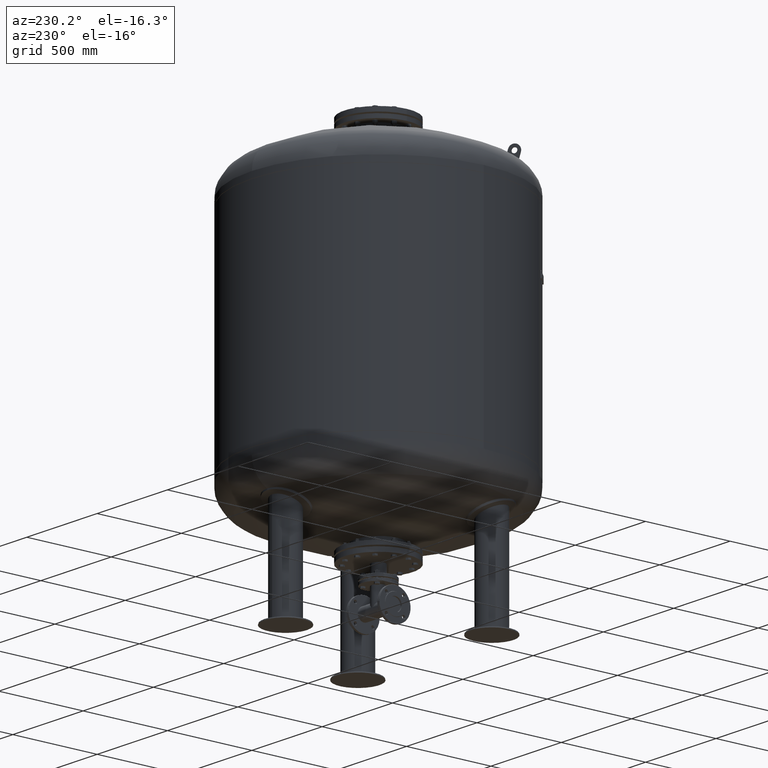
[diagram: clean part render]
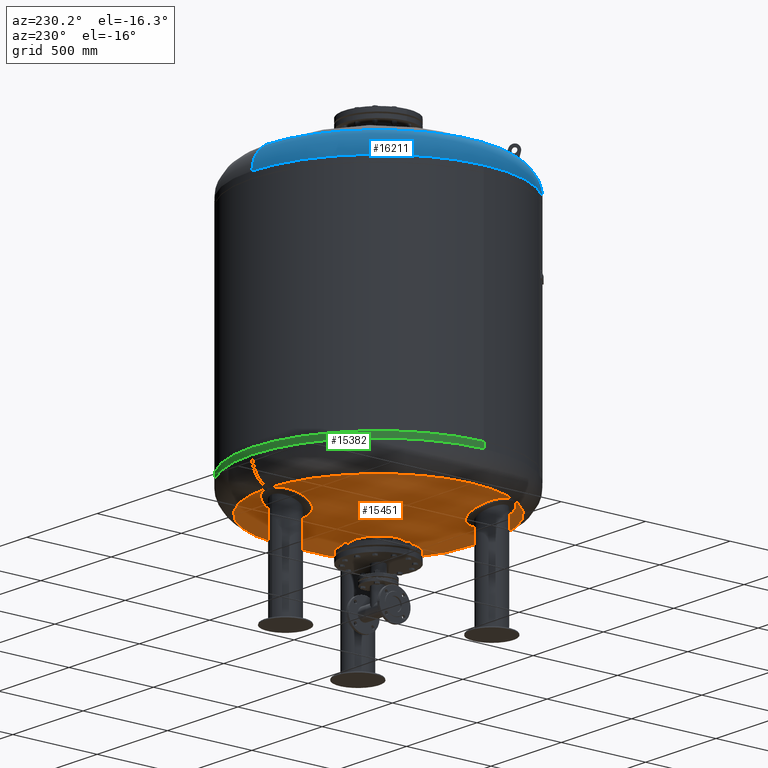
[diagram: same view with three faces highlighted in distinct colors, each labeled with its STEP entity id]
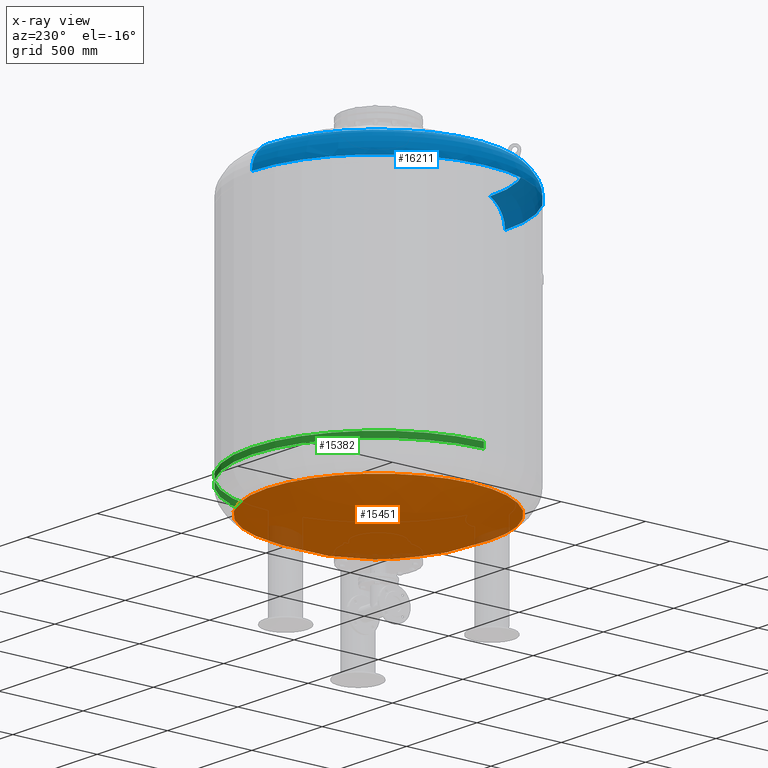
[diagram: x-ray of the same camera — body ghosted, the three highlighted faces saturated]
A machine part, auxiliary view with three faces highlighted in distinct colors.
The next image is the same camera in x-ray (body ghosted, the three faces saturated) — at least one of them is partly hidden behind the body in this view.
Their STEP definitions:

[orange] entity #15451 — the highlighted spherical surface has radius 1509 mm.
#15390=CARTESIAN_POINT('',(-4.647817E-014,-660.606666666666800,642.283437133770350));
#15391=VERTEX_POINT('',#15390);
#15407=CARTESIAN_POINT('',(-1.273765E-013,660.606666666666800,642.283437133770800));
#15408=VERTEX_POINT('',#15407);
#15416=CARTESIAN_POINT('',(-660.606666666666800,-2.797401E-014,642.283437133770460));
#15417=VERTEX_POINT('',#15416);
#15418=CARTESIAN_POINT('',(-2.617994E-014,-2.797401E-014,642.283437133770580));
#15419=DIRECTION('',(0.0,0.0,1.0));
#15420=DIRECTION('',(-1.0,0.0,0.0));
#15421=AXIS2_PLACEMENT_3D('',#15418,#15419,#15420);
#15422=CIRCLE('',#15421,660.606666666666800);
#15423=EDGE_CURVE('',#15408,#15417,#15422,.T.);
#15425=CARTESIAN_POINT('',(-2.617994E-014,-2.797401E-014,642.283437133770580));
#15426=DIRECTION('',(0.0,0.0,1.0));
#15427=DIRECTION('',(-1.0,0.0,0.0));
#15428=AXIS2_PLACEMENT_3D('',#15425,#15426,#15427);
#15429=CIRCLE('',#15428,660.606666666666800);
#15430=EDGE_CURVE('',#15417,#15391,#15429,.T.);
#15435=CARTESIAN_POINT('',(-3.455040E-013,-2.771988E-013,1999.0));
#15436=DIRECTION('',(0.0,-1.0,0.0));
#15437=DIRECTION('',(1.0,0.0,0.0));
#15438=AXIS2_PLACEMENT_3D('',#15435,#15436,#15437);
#15439=SPHERICAL_SURFACE('',#15438,1509.0);
#15440=ORIENTED_EDGE('',*,*,#15430,.F.);
#15441=ORIENTED_EDGE('',*,*,#15423,.F.);
#15442=CARTESIAN_POINT('',(-2.617994E-014,-2.797401E-014,642.283437133770580));
#15443=DIRECTION('',(0.0,0.0,1.0));
#15444=DIRECTION('',(-1.0,0.0,0.0));
#15445=AXIS2_PLACEMENT_3D('',#15442,#15443,#15444);
#15446=CIRCLE('',#15445,660.606666666666800);
#15447=EDGE_CURVE('',#15391,#15408,#15446,.T.);
#15448=ORIENTED_EDGE('',*,*,#15447,.F.);
#15449=EDGE_LOOP('',(#15440,#15441,#15448));
#15450=FACE_OUTER_BOUND('',#15449,.T.);
#15451=ADVANCED_FACE('',(#15450),#15439,.T.);

[blue] entity #16211 — the highlighted toroidal blend (fillet) surface has major radius 591 mm and minor (blend) radius 159 mm.
#15744=CARTESIAN_POINT('',(-750.0,3.761120E-014,2130.762332584101800));
#15745=VERTEX_POINT('',#15744);
#15752=CARTESIAN_POINT('',(1.267436E-013,750.0,2130.762332584101800));
#15753=VERTEX_POINT('',#15752);
#15754=CARTESIAN_POINT('',(1.459986E-014,-5.423428E-014,2130.762332584101800));
#15755=DIRECTION('',(0.0,0.0,-1.0));
#15756=DIRECTION('',(1.0,0.0,0.0));
#15757=AXIS2_PLACEMENT_3D('',#15754,#15755,#15756);
#15758=CIRCLE('',#15757,750.0);
#15759=EDGE_CURVE('',#15745,#15753,#15758,.T.);
#15839=CARTESIAN_POINT('',(3.489809E-014,-750.0,2130.762332584101800));
#15840=VERTEX_POINT('',#15839);
#15841=CARTESIAN_POINT('',(2.782883E-014,-660.606666666666800,2273.716562866229200));
#15842=VERTEX_POINT('',#15841);
#15843=CARTESIAN_POINT('',(3.489809E-014,-591.0,2130.762332584101800));
#15844=DIRECTION('',(-1.0,0.0,0.0));
#15845=DIRECTION('',(0.0,-1.0,0.0));
#15846=AXIS2_PLACEMENT_3D('',#15843,#15844,#15845);
#15847=CIRCLE('',#15846,159.0);
#15848=EDGE_CURVE('',#15840,#15842,#15847,.T.);
#15858=CARTESIAN_POINT('',(1.087271E-013,660.606666666666800,2273.716562866229200));
#15859=VERTEX_POINT('',#15858);
#15860=CARTESIAN_POINT('',(1.072723E-013,591.0,2130.762332584101800));
#15861=DIRECTION('',(1.0,0.0,0.0));
#15862=DIRECTION('',(0.0,1.0,0.0));
#15863=AXIS2_PLACEMENT_3D('',#15860,#15861,#15862);
#15864=CIRCLE('',#15863,159.0);
#15865=EDGE_CURVE('',#15753,#15859,#15864,.T.);
#15975=CARTESIAN_POINT('',(-570.596255916196580,-332.898003566952920,2273.716562866229700));
#15976=VERTEX_POINT('',#15975);
#15977=CARTESIAN_POINT('',(-588.588482349331340,-343.285820341443810,2261.575471650438900));
#15978=VERTEX_POINT('',#15977);
#15979=CARTESIAN_POINT('',(-570.596255916196580,-332.898003566952920,2273.716562866229700));
#15980=CARTESIAN_POINT('',(-572.053991207973350,-333.739627430067460,2272.896971483751700));
#15981=CARTESIAN_POINT('',(-573.514766784388030,-334.583006602336130,2272.038819520509200));
#15982=CARTESIAN_POINT('',(-576.976356895228950,-336.581556584654270,2269.913031156073000));
#15983=CARTESIAN_POINT('',(-578.974623379368950,-337.735256277185040,2268.612231014925300));
#15984=CARTESIAN_POINT('',(-582.931609407494880,-340.019823225703130,2265.881663004374300));
#15985=CARTESIAN_POINT('',(-584.890327860480620,-341.150689851801190,2264.451893026950500));
#15986=CARTESIAN_POINT('',(-587.410163811145820,-342.605517816231330,2262.507741414689900));
#15987=CARTESIAN_POINT('',(-588.001034993596930,-342.946657452475790,2262.044139472540300));
#15988=CARTESIAN_POINT('',(-588.588482349331340,-343.285820341443810,2261.575471650438900));
#15989=B_SPLINE_CURVE_WITH_KNOTS('',3,(#15979,#15980,#15981,#15982,#15983,#15984,#15985,#15986,#15987,#15988),.UNSPECIFIED.,.F.,.U.,(4,2,2,2,4),(774.656357685334110,780.010496801651020,787.369065281617960,794.727633761584910,796.996981542536560),.UNSPECIFIED.);
#15990=EDGE_CURVE('',#15976,#15978,#15989,.T.);
#16092=CARTESIAN_POINT('',(-591.588482349331340,-338.089667918737230,2261.575471650438900));
#16093=VERTEX_POINT('',#16092);
#16094=CARTESIAN_POINT('',(-588.588482349331340,-343.285820341443810,2261.575471650438900));
#16095=CARTESIAN_POINT('',(-589.090111222557650,-342.418391231104920,2261.578030124753200));
#16096=CARTESIAN_POINT('',(-589.590425441359340,-341.552525995020690,2261.579301453786200));
#16097=CARTESIAN_POINT('',(-590.089401200238290,-340.688274628897030,2261.579301453786200));
#16098=CARTESIAN_POINT('',(-590.588376959113930,-339.824023262779290,2261.579301453786200));
#16099=CARTESIAN_POINT('',(-591.088081140412330,-338.957805821386390,2261.578030124753200));
#16100=CARTESIAN_POINT('',(-591.588482349331340,-338.089667918737230,2261.575471650438900));
#16101=B_SPLINE_CURVE_WITH_KNOTS('',3,(#16094,#16095,#16096,#16097,#16098,#16099,#16100),.UNSPECIFIED.,.F.,.U.,(4,3,4),(-2.993854553274037,0.0,2.993854553253479),.UNSPECIFIED.);
#16102=EDGE_CURVE('',#15978,#16093,#16101,.T.);
#16127=CARTESIAN_POINT('',(-573.596255916196580,-327.701851144246290,2273.716562866229700));
#16128=VERTEX_POINT('',#16127);
#16129=CARTESIAN_POINT('',(-591.588482349331340,-338.089667918737230,2261.575471650438900));
#16130=CARTESIAN_POINT('',(-591.001091399295430,-337.750537595614450,2262.044094471851200));
#16131=CARTESIAN_POINT('',(-590.410277309616280,-337.409430921897070,2262.507652363015000));
#16132=CARTESIAN_POINT('',(-587.890496100690370,-335.954634562624850,2264.451768031998700));
#16133=CARTESIAN_POINT('',(-585.931774475118230,-334.823766104833230,2265.881544856047600));
#16134=CARTESIAN_POINT('',(-581.974781685757190,-332.539195252714250,2268.612126014599200));
#16135=CARTESIAN_POINT('',(-579.976511612969600,-331.385493488276780,2269.912932457119000));
#16136=CARTESIAN_POINT('',(-576.514867502691460,-329.386912329369070,2272.038760350182700));
#16137=CARTESIAN_POINT('',(-575.054041405248540,-328.543503988771140,2272.896943261032400));
#16138=CARTESIAN_POINT('',(-573.596255916196580,-327.701851144246290,2273.716562866229700));
#16139=B_SPLINE_CURVE_WITH_KNOTS('',3,(#16129,#16130,#16131,#16132,#16133,#16134,#16135,#16136,#16137,#16138),.UNSPECIFIED.,.F.,.U.,(4,2,2,2,4),(144.901635701804910,147.170765481127490,154.529352849647950,161.887940218168410,167.242267557251490),.UNSPECIFIED.);
#16140=EDGE_CURVE('',#16093,#16128,#16139,.T.);
#16177=CARTESIAN_POINT('',(3.489809E-014,-5.423428E-014,2130.762332584101800));
#16178=DIRECTION('',(4.945121E-017,-1.836970E-016,-1.0));
#16179=DIRECTION('',(0.0,-1.0,0.0));
#16180=AXIS2_PLACEMENT_3D('',#16177,#16178,#16179);
#16181=TOROIDAL_SURFACE('',#16180,591.0,159.0);
#16182=ORIENTED_EDGE('',*,*,#15848,.T.);
#16183=CARTESIAN_POINT('',(7.530601E-015,-2.797401E-014,2273.716562866229200));
#16184=DIRECTION('',(0.0,0.0,-1.0));
#16185=DIRECTION('',(1.0,0.0,0.0));
#16186=AXIS2_PLACEMENT_3D('',#16183,#16184,#16185);
#16187=CIRCLE('',#16186,660.606666666666800);
#16188=EDGE_CURVE('',#15842,#15976,#16187,.T.);
#16189=ORIENTED_EDGE('',*,*,#16188,.T.);
#16190=ORIENTED_EDGE('',*,*,#15990,.T.);
#16191=ORIENTED_EDGE('',*,*,#16102,.T.);
#16192=ORIENTED_EDGE('',*,*,#16140,.T.);
#16193=CARTESIAN_POINT('',(7.530601E-015,-2.797401E-014,2273.716562866229200));
#16194=DIRECTION('',(0.0,0.0,-1.0));
#16195=DIRECTION('',(1.0,0.0,0.0));
#16196=AXIS2_PLACEMENT_3D('',#16193,#16194,#16195);
#16197=CIRCLE('',#16196,660.606666666666800);
#16198=EDGE_CURVE('',#16128,#15859,#16197,.T.);
#16199=ORIENTED_EDGE('',*,*,#16198,.T.);
#16200=ORIENTED_EDGE('',*,*,#15865,.F.);
#16201=ORIENTED_EDGE('',*,*,#15759,.F.);
#16202=CARTESIAN_POINT('',(1.459986E-014,-5.423428E-014,2130.762332584101800));
#16203=DIRECTION('',(0.0,0.0,-1.0));
#16204=DIRECTION('',(1.0,0.0,0.0));
#16205=AXIS2_PLACEMENT_3D('',#16202,#16203,#16204);
#16206=CIRCLE('',#16205,750.0);
#16207=EDGE_CURVE('',#15840,#15745,#16206,.T.);
#16208=ORIENTED_EDGE('',*,*,#16207,.F.);
#16209=EDGE_LOOP('',(#16182,#16189,#16190,#16191,#16192,#16199,#16200,#16201,#16208));
#16210=FACE_OUTER_BOUND('',#16209,.T.);
#16211=ADVANCED_FACE('',(#16210),#16181,.T.);

[green] entity #15382 — the highlighted cylindrical surface (partial cylindrical patch) has radius 750 mm, axis along (-0, -0, 1).
#15332=CARTESIAN_POINT('',(-5.374415E-014,-5.742715E-014,802.618833707949080));
#15333=DIRECTION('',(-1.719159E-016,-1.836970E-016,1.0));
#15334=DIRECTION('',(-1.0,0.0,0.0));
#15335=AXIS2_PLACEMENT_3D('',#15332,#15333,#15334);
#15336=CYLINDRICAL_SURFACE('',#15335,750.0);
#15337=CARTESIAN_POINT('',(-750.0,-6.062002E-014,819.999999999999890));
#15338=VERTEX_POINT('',#15337);
#15339=CARTESIAN_POINT('',(-750.0,-5.423428E-014,785.237667415897930));
#15340=VERTEX_POINT('',#15339);
#15341=CARTESIAN_POINT('',(-750.0,-6.062002E-014,819.999999999999890));
#15342=DIRECTION('',(0.0,0.0,-1.0));
#15343=VECTOR('',#15342,34.762332584101955);
#15344=LINE('',#15341,#15343);
#15345=EDGE_CURVE('',#15338,#15340,#15344,.T.);
#15346=ORIENTED_EDGE('',*,*,#15345,.F.);
#15347=CARTESIAN_POINT('',(750.0,3.122546E-014,820.000000000000110));
#15348=VERTEX_POINT('',#15347);
#15349=CARTESIAN_POINT('',(-5.673224E-014,-6.062002E-014,820.0));
#15350=DIRECTION('',(0.0,0.0,1.0));
#15351=DIRECTION('',(-1.0,0.0,0.0));
#15352=AXIS2_PLACEMENT_3D('',#15349,#15350,#15351);
#15353=CIRCLE('',#15352,750.0);
#15354=EDGE_CURVE('',#15348,#15338,#15353,.T.);
#15355=ORIENTED_EDGE('',*,*,#15354,.F.);
#15356=CARTESIAN_POINT('',(750.0,3.761120E-014,785.237667415898160));
#15357=VERTEX_POINT('',#15356);
#15358=CARTESIAN_POINT('',(750.0,3.122546E-014,820.000000000000110));
#15359=DIRECTION('',(0.0,0.0,-1.0));
#15360=VECTOR('',#15359,34.762332584101955);
#15361=LINE('',#15358,#15360);
#15362=EDGE_CURVE('',#15348,#15357,#15361,.T.);
#15363=ORIENTED_EDGE('',*,*,#15362,.T.);
#15364=CARTESIAN_POINT('',(-1.628998E-013,750.0,785.237667415898270));
#15365=VERTEX_POINT('',#15364);
#15366=CARTESIAN_POINT('',(-5.075605E-014,-5.423428E-014,785.237667415898160));
#15367=DIRECTION('',(0.0,0.0,1.0));
#15368=DIRECTION('',(-1.0,0.0,0.0));
#15369=AXIS2_PLACEMENT_3D('',#15366,#15367,#15368);
#15370=CIRCLE('',#15369,750.0);
#15371=EDGE_CURVE('',#15357,#15365,#15370,.T.);
#15372=ORIENTED_EDGE('',*,*,#15371,.T.);
#15373=CARTESIAN_POINT('',(-5.075605E-014,-5.423428E-014,785.237667415898160));
#15374=DIRECTION('',(0.0,0.0,1.0));
#15375=DIRECTION('',(-1.0,0.0,0.0));
#15376=AXIS2_PLACEMENT_3D('',#15373,#15374,#15375);
#15377=CIRCLE('',#15376,750.0);
#15378=EDGE_CURVE('',#15365,#15340,#15377,.T.);
#15379=ORIENTED_EDGE('',*,*,#15378,.T.);
#15380=EDGE_LOOP('',(#15346,#15355,#15363,#15372,#15379));
#15381=FACE_OUTER_BOUND('',#15380,.T.);
#15382=ADVANCED_FACE('',(#15381),#15336,.T.);